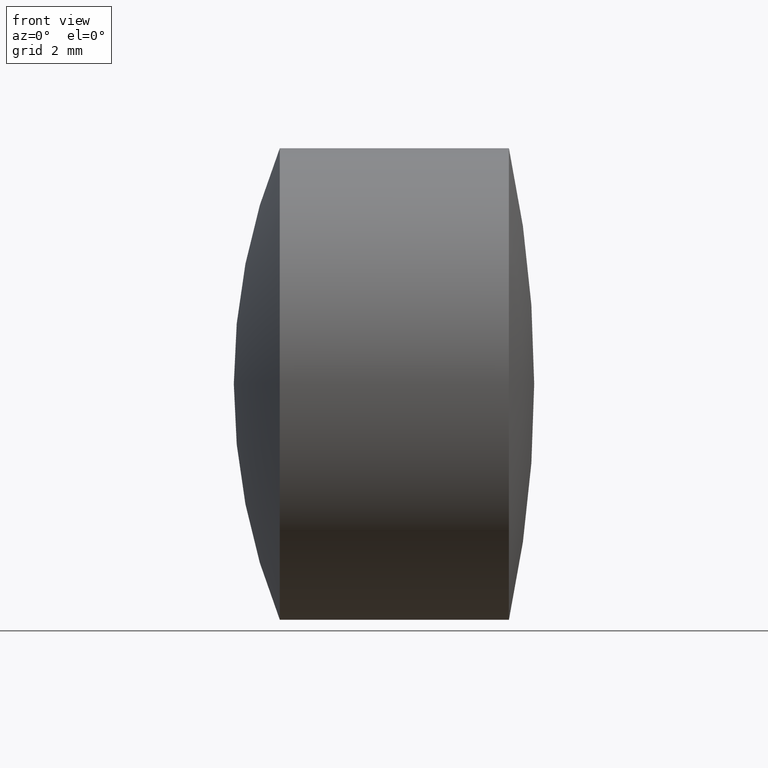
[diagram: clean part render]
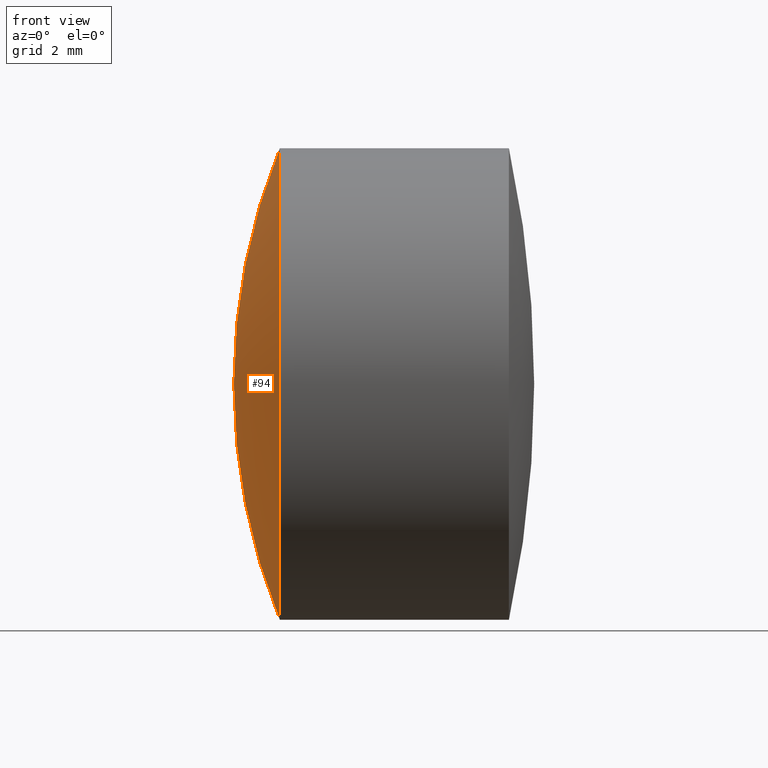
[diagram: same view with one face highlighted and labeled with its STEP entity id]
A machine part, front view. The second image highlights one B-rep face of the part: STEP entity #94.
In plain terms, the highlighted spherical surface has radius 13.303 mm.
Its self-contained STEP definition (entity closure, byte-faithful):
#8 = SPHERICAL_SURFACE ( 'NONE', #330, 13.30299999999999900 ) ;
#33 = CIRCLE ( 'NONE', #228, 13.30299999999999900 ) ;
#34 = DIRECTION ( 'NONE',  ( 0.0000000000000000000, 0.0000000000000000000, -1.000000000000000000 ) ) ;
#35 = CARTESIAN_POINT ( 'NONE',  ( -0.8020328596320411800, 6.123233995736764300E-016, -4.999999999999999100 ) ) ;
#54 = VERTEX_POINT ( 'NONE', #35 ) ;
#57 = CARTESIAN_POINT ( 'NONE',  ( 11.52557067876908700, 0.0000000000000000000, -4.606281676806371000E-016 ) ) ;
#71 = CARTESIAN_POINT ( 'NONE',  ( 11.52557067876908700, 0.0000000000000000000, -4.606281676806371000E-016 ) ) ;
#92 = EDGE_CURVE ( 'NONE', #224, #285, #136, .T. ) ;
#94 = ADVANCED_FACE ( 'NONE', ( #309 ), #8, .T. ) ;
#98 = DIRECTION ( 'NONE',  ( -1.000000000000000000, -0.0000000000000000000, -0.0000000000000000000 ) ) ;
#100 = CIRCLE ( 'NONE', #246, 5.000000000000000000 ) ;
#102 = DIRECTION ( 'NONE',  ( 0.0000000000000000000, -1.224646799147353200E-016, 1.000000000000000000 ) ) ;
#107 = ORIENTED_EDGE ( 'NONE', *, *, #325, .F. ) ;
#126 = CARTESIAN_POINT ( 'NONE',  ( -1.777429321230912200, 0.0000000000000000000, 3.539456507722247700E-016 ) ) ;
#134 = ORIENTED_EDGE ( 'NONE', *, *, #92, .T. ) ;
#136 = CIRCLE ( 'NONE', #334, 13.30299999999999900 ) ;
#141 = EDGE_LOOP ( 'NONE', ( #107, #283, #134 ) ) ;
#162 = CARTESIAN_POINT ( 'NONE',  ( 11.52557067876908700, 0.0000000000000000000, -4.606281676806371000E-016 ) ) ;
#189 = DIRECTION ( 'NONE',  ( 0.0000000000000000000, 0.0000000000000000000, 1.000000000000000000 ) ) ;
#211 = DIRECTION ( 'NONE',  ( 0.0000000000000000000, -1.000000000000000000, 0.0000000000000000000 ) ) ;
#224 = VERTEX_POINT ( 'NONE', #238 ) ;
#228 = AXIS2_PLACEMENT_3D ( 'NONE', #71, #263, #102 ) ;
#238 = CARTESIAN_POINT ( 'NONE',  ( -0.8020328596320411800, 0.0000000000000000000, 4.999999999999999100 ) ) ;
#244 = DIRECTION ( 'NONE',  ( 0.0000000000000000000, 1.000000000000000000, 0.0000000000000000000 ) ) ;
#246 = AXIS2_PLACEMENT_3D ( 'NONE', #258, #98, #287 ) ;
#249 = EDGE_CURVE ( 'NONE', #54, #224, #100, .T. ) ;
#258 = CARTESIAN_POINT ( 'NONE',  ( -0.8020328596320403000, 0.0000000000000000000, 0.0000000000000000000 ) ) ;
#263 = DIRECTION ( 'NONE',  ( -0.0000000000000000000, 1.000000000000000000, 1.224646799147353200E-016 ) ) ;
#283 = ORIENTED_EDGE ( 'NONE', *, *, #249, .T. ) ;
#285 = VERTEX_POINT ( 'NONE', #126 ) ;
#287 = DIRECTION ( 'NONE',  ( 0.0000000000000000000, 0.0000000000000000000, 1.000000000000000000 ) ) ;
#309 = FACE_OUTER_BOUND ( 'NONE', #141, .T. ) ;
#325 = EDGE_CURVE ( 'NONE', #54, #285, #33, .T. ) ;
#330 = AXIS2_PLACEMENT_3D ( 'NONE', #162, #244, #189 ) ;
#334 = AXIS2_PLACEMENT_3D ( 'NONE', #57, #211, #34 ) ;